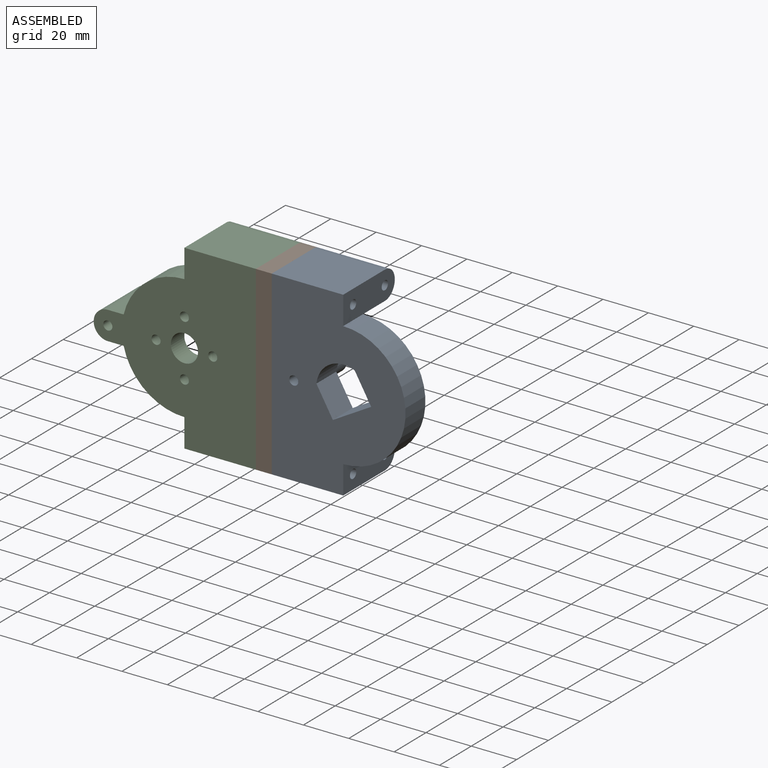
[diagram: assembled view]
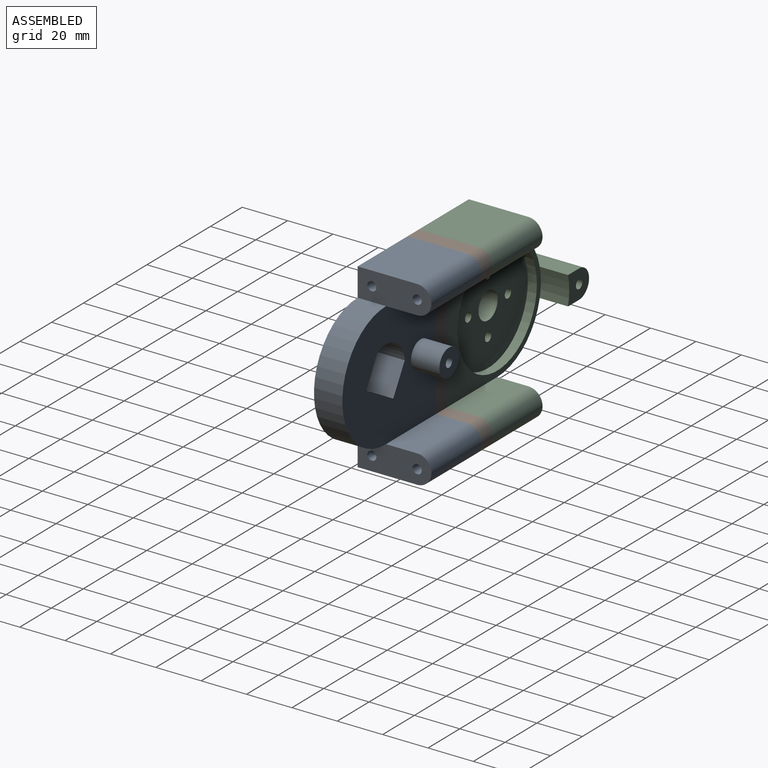
[diagram: assembled view, second angle]
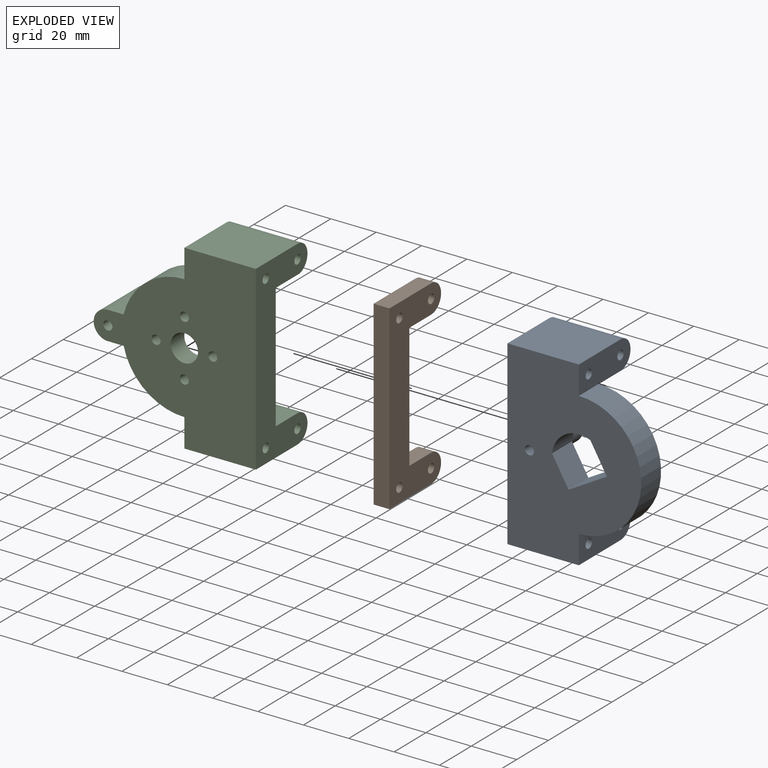
[diagram: exploded view]
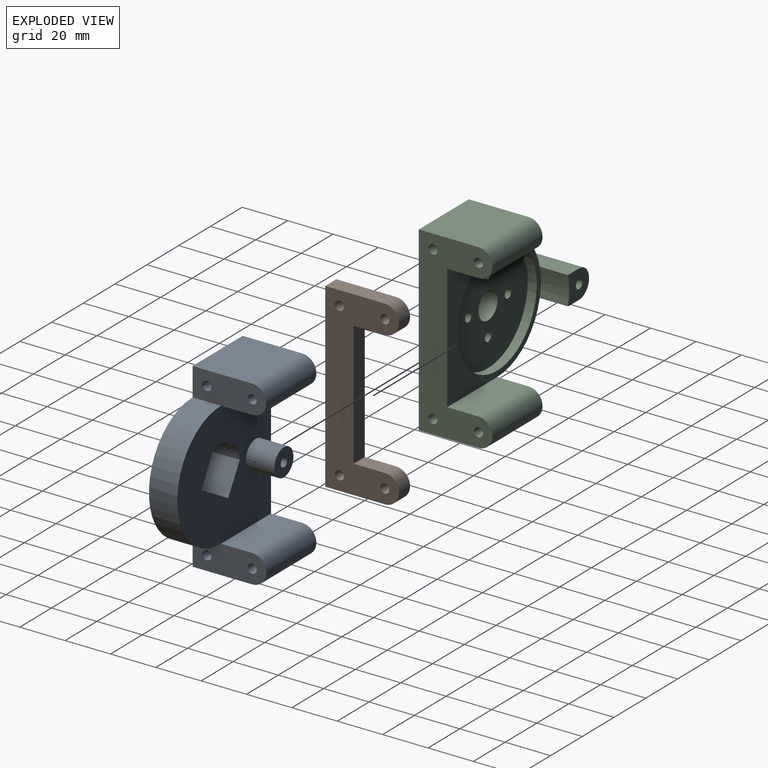
[diagram: exploded view, second angle]
ASSEMBLY  parts=3 mates=2
PART A: 23 faces, bbox 59x32.5x80 mm
  f0: plane 59x55mm, normal (0,1,0), area 2456mm2, adj f1,f2,f3,f4,f5,f6,f13,f17
  f1: cylinder r=27.5mm len=55mm, axis (0,-1,0), area 1079.9mm2, adj f0,f7,f8,f11
  f2: plane 16.89x12.5mm, normal (-0.5,0,0.87), area 243.7mm2, adj f0,f3,f5,f7
  f3: plane 12.56x12.5mm, normal (0.87,0,0.5), area 181.2mm2, adj f0,f2,f4,f7
  f4: cylinder r=12mm len=16.89mm, axis (0,-1,0), area 284.5mm2, adj f0,f3,f5,f7
  f5: plane 12.56x12.5mm, normal (-0.87,0,-0.5), area 181.2mm2, adj f0,f2,f4,f7
  f6: plane 80x32.5mm, normal (-1,0,0), area 1416.2mm2, adj f0,f7,f9,f10,f12,f13,f14,f15
  f7: plane 80x59mm, normal (0,-1,0), area 3344.2mm2, adj f1,f2,f3,f4,f5,f6,f8,f9
  f8: plane 32.5x12.5mm, normal (1,0,0), area 364.4mm2, adj f1,f7,f9,f10,f17,f18,f19
  f9: plane 31.5x26.25mm, normal (0,0,1), area 826.9mm2, adj f6,f7,f8,f19
  f10: cylinder r=2mm len=31.5mm, axis (1,0,0), area 395.8mm2, adj f6,f8
  f11: plane 32.5x12.5mm, normal (1,0,0), area 364.4mm2, adj f1,f7,f12,f13,f14,f15,f16
  f12: plane 31.5x26.25mm, normal (0,0,-1), area 826.9mm2, adj f6,f7,f11,f15
  f13: plane 31.5x13.75mm, normal (0,0,1), area 433.1mm2, adj f0,f6,f11,f15
  f14: cylinder r=2mm len=31.5mm, axis (1,0,0), area 395.8mm2, adj f6,f11
  f15: cylinder r=6.25mm len=31.5mm, axis (1,0,0), area 618.5mm2, adj f6,f11,f12,f13
  f16: cylinder r=2mm len=31.5mm, axis (1,0,0), area 395.8mm2, adj f6,f11
  f17: plane 31.5x13.75mm, normal (0,0,-1), area 433.1mm2, adj f0,f6,f8,f19
  f18: cylinder r=2mm len=31.5mm, axis (1,0,0), area 395.8mm2, adj f6,f8
  f19: cylinder r=6.25mm len=31.5mm, axis (1,0,0), area 618.5mm2, adj f6,f8,f9,f17
  f20: cylinder r=6.01mm len=12.5mm, axis (0,-1,0), area 471.8mm2, adj f0,f21
  f21: plane 12.01x12.01mm, normal (0,1,0), area 100.8mm2, adj f20,f22
  f22: cylinder r=2mm len=25mm, axis (0,1,0), area 314.2mm2, adj f7,f21
PART B: 14 faces, bbox 32.5x7x80 mm
  f0: plane 13.75x7mm, normal (0,0,1), area 96.2mm2, adj f1,f7,f8,f9
  f1: cylinder r=6.25mm len=12.5mm, axis (0,1,0), area 137.4mm2, adj f0,f2,f8,f9
  f2: plane 26.25x7mm, normal (0,0,-1), area 183.8mm2, adj f1,f3,f8,f9
  f3: plane 80x7mm, normal (1,0,0), area 560mm2, adj f2,f4,f8,f9
  f4: plane 26.25x7mm, normal (0,0,1), area 183.8mm2, adj f3,f5,f8,f9
  f5: cylinder r=6.25mm len=12.5mm, axis (0,1,0), area 137.4mm2, adj f4,f6,f8,f9
  f6: plane 13.75x7mm, normal (0,0,-1), area 96.2mm2, adj f5,f7,f8,f9
  f7: plane 55x7mm, normal (-1,0,0), area 385mm2, adj f0,f6,f8,f9
  f8: plane 80x32.5mm, normal (0,-1,0), area 1416.2mm2, adj f0,f1,f2,f3,f4,f5,f6,f7
  f9: plane 80x32.5mm, normal (0,1,0), area 1416.2mm2, adj f0,f1,f2,f3,f4,f5,f6,f7
  f10: cylinder r=2mm len=7mm, axis (0,1,0), area 88mm2, adj f8,f9
  f11: cylinder r=2mm len=7mm, axis (0,1,0), area 88mm2, adj f8,f9
  f12: cylinder r=2mm len=7mm, axis (0,1,0), area 88mm2, adj f8,f9
  f13: cylinder r=2mm len=7mm, axis (0,1,0), area 88mm2, adj f8,f9
PART C: 30 faces, bbox 71.5x32.5x80 mm
  f0: cylinder r=27.5mm len=26.78mm, axis (0,-1,0), area 461.1mm2, adj f4,f5,f10,f25
  f1: cylinder r=27.5mm len=26.78mm, axis (0,-1,0), area 461.1mm2, adj f4,f5,f15,f27
  f2: plane 80x32.5mm, normal (1,0,0), area 1414.1mm2, adj f4,f5,f11,f12,f16,f17,f18,f19
  f3: cylinder r=6mm len=12mm, axis (0,-1,0), area 320.4mm2, adj f4,f14
  f4: plane 80x71.5mm, normal (0,-1,0), area 3674.5mm2, adj f0,f1,f2,f3,f6,f7,f8,f9
  f5: plane 59x55.14mm, normal (0,1,0), area 959.2mm2, adj f0,f1,f2,f13,f17,f21,f24
  f6: cylinder r=2mm len=8.5mm, axis (0,1,0), area 106.8mm2, adj f4,f14
  f7: cylinder r=2mm len=8.5mm, axis (0,1,0), area 106.8mm2, adj f4,f14
  f8: cylinder r=2mm len=8.5mm, axis (0,1,0), area 106.8mm2, adj f4,f14
  f9: cylinder r=2mm len=8.5mm, axis (0,1,0), area 106.8mm2, adj f4,f14
  f10: plane 32.5x12.5mm, normal (-1,0,0), area 364.4mm2, adj f0,f4,f11,f12,f21,f22,f23
  f11: plane 31.5x26.26mm, normal (0,0,1), area 827.2mm2, adj f2,f4,f10,f23
  f12: cylinder r=2mm len=31.5mm, axis (1,0,0), area 395.8mm2, adj f2,f10
  f13: cylinder r=25mm len=50mm, axis (0,1,0), area 628.3mm2, adj f5,f14
  f14: plane 50x50mm, normal (0,1,0), area 1800.1mm2, adj f3,f6,f7,f8,f9,f13
  f15: plane 32.5x12.5mm, normal (-1,0,0), area 364.4mm2, adj f1,f4,f16,f17,f18,f19,f20
  f16: plane 31.5x26.25mm, normal (0,0,-1), area 826.9mm2, adj f2,f4,f15,f19
  f17: plane 31.5x13.75mm, normal (0,0,1), area 433.1mm2, adj f2,f5,f15,f19
  f18: cylinder r=2mm len=31.5mm, axis (1,0,0), area 395.8mm2, adj f2,f15
  f19: cylinder r=6.25mm len=31.5mm, axis (1,0,0), area 618.5mm2, adj f2,f15,f16,f17
  f20: cylinder r=2mm len=31.5mm, axis (1,0,0), area 395.8mm2, adj f2,f15
  f21: plane 31.5x15.08mm, normal (0,0,-1), area 461.1mm2, adj f2,f5,f10,f23
  f22: cylinder r=2mm len=31.5mm, axis (1,0,0), area 395.8mm2, adj f2,f10
  f23: cylinder r=6.25mm len=31.5mm, axis (-1,0,0), area 590mm2, adj f2,f10,f11,f21
  f24: cylinder r=27.5mm len=12.5mm, axis (0,-1,0), area 157.6mm2, adj f5,f25,f27,f28
  f25: plane 25x6.97mm, normal (0,0,1), area 174.2mm2, adj f0,f4,f24,f26,f28
  f26: cylinder r=6.25mm len=25mm, axis (0,-1,0), area 490.9mm2, adj f4,f25,f27,f28
  f27: plane 25x6.97mm, normal (0,0,-1), area 174.2mm2, adj f1,f4,f24,f26,f28
  f28: plane 13.22x12.5mm, normal (0,1,0), area 129.9mm2, adj f24,f25,f26,f27,f29
  f29: cylinder r=2mm len=25mm, axis (0,-1,0), area 314.2mm2, adj f4,f28
PLACE A t=(-40.21,-22.93,0.41)mm
PLACE B rot(axis=(0,0,-1),90deg) t=(-29.2,-18.52,0.41)mm
PLACE C t=(-25.18,-22.93,0.41)mm
MATE fastened A.f10 <-> B.f11  axis (-1,0,0) through (-29.2,-29.18,34.16)mm
MATE fastened B.f11 <-> C.f12  axis (-1,0,0) through (-36.2,-29.18,34.16)mm
